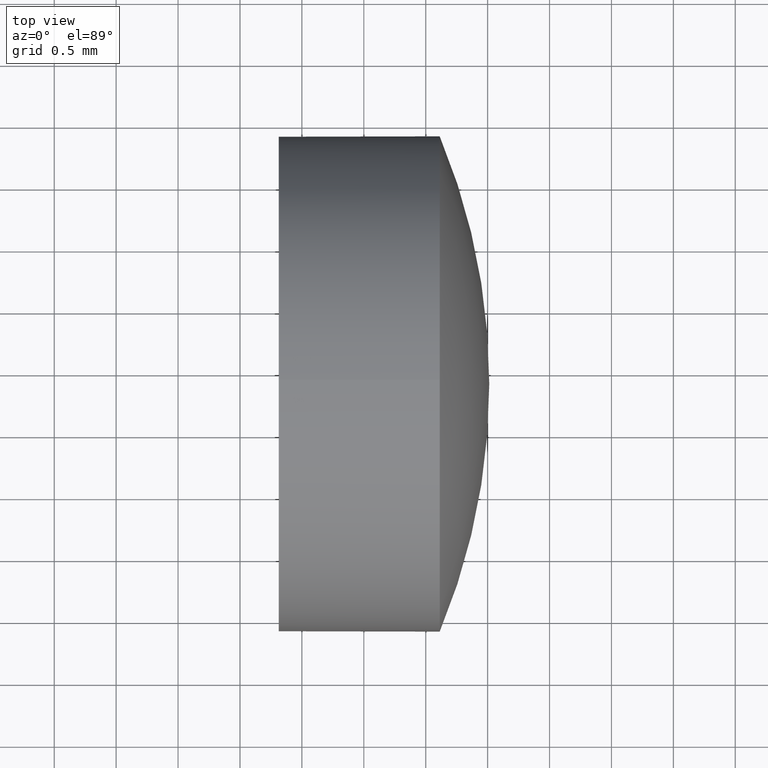
[diagram: clean part render]
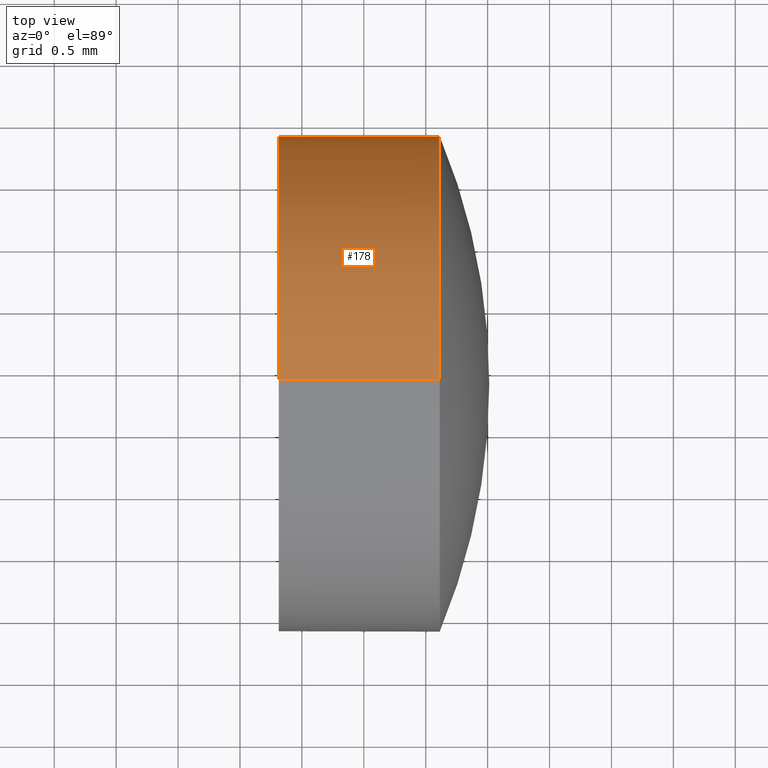
[diagram: same view with one face highlighted and labeled with its STEP entity id]
A machine part, top view. The second image highlights one B-rep face of the part: STEP entity #178.
In plain terms, the highlighted cylindrical surface (partial cylindrical patch) has radius 2 mm, axis along (-1, -0, -0).
Its self-contained STEP definition (entity closure, byte-faithful):
#9 = ORIENTED_EDGE ( 'NONE', *, *, #77, .F. ) ;
#10 = AXIS2_PLACEMENT_3D ( 'NONE', #47, #21, #88 ) ;
#12 = VECTOR ( 'NONE', #16, 1000.000000000000000 ) ;
#16 = DIRECTION ( 'NONE',  ( -1.000000000000000000, -0.0000000000000000000, -0.0000000000000000000 ) ) ;
#19 = CARTESIAN_POINT ( 'NONE',  ( 638.8131078483555700, -28.10203624254955600, 0.0000000000000000000 ) ) ;
#21 = DIRECTION ( 'NONE',  ( -1.000000000000000000, -0.0000000000000000000, -0.0000000000000000000 ) ) ;
#22 = CARTESIAN_POINT ( 'NONE',  ( 638.3832237115749400, -28.10203624254955600, -2.000000000000001800 ) ) ;
#33 = CARTESIAN_POINT ( 'NONE',  ( 640.1131078483556400, -28.10203624254955600, 0.0000000000000000000 ) ) ;
#37 = CARTESIAN_POINT ( 'NONE',  ( 640.1131078483556400, -28.10203624254955600, 2.000000000000001800 ) ) ;
#42 = DIRECTION ( 'NONE',  ( -1.000000000000000000, -0.0000000000000000000, -0.0000000000000000000 ) ) ;
#45 = DIRECTION ( 'NONE',  ( 0.0000000000000000000, 0.0000000000000000000, 1.000000000000000000 ) ) ;
#47 = CARTESIAN_POINT ( 'NONE',  ( 640.1131078483556400, -28.10203624254955600, 0.0000000000000000000 ) ) ;
#51 = LINE ( 'NONE', #176, #81 ) ;
#58 = LINE ( 'NONE', #22, #12 ) ;
#60 = EDGE_CURVE ( 'NONE', #183, #158, #139, .T. ) ;
#63 = VERTEX_POINT ( 'NONE', #68 ) ;
#68 = CARTESIAN_POINT ( 'NONE',  ( 638.8131078483555700, -28.10203624254955600, 2.000000000000001800 ) ) ;
#69 = EDGE_LOOP ( 'NONE', ( #123, #79, #9, #127, #96 ) ) ;
#77 = EDGE_CURVE ( 'NONE', #63, #140, #134, .T. ) ;
#79 = ORIENTED_EDGE ( 'NONE', *, *, #167, .T. ) ;
#81 = VECTOR ( 'NONE', #159, 1000.000000000000000 ) ;
#88 = DIRECTION ( 'NONE',  ( 0.0000000000000000000, 0.0000000000000000000, 1.000000000000000000 ) ) ;
#95 = CYLINDRICAL_SURFACE ( 'NONE', #110, 2.000000000000001800 ) ;
#96 = ORIENTED_EDGE ( 'NONE', *, *, #128, .T. ) ;
#100 = DIRECTION ( 'NONE',  ( 0.0000000000000000000, 0.0000000000000000000, 1.000000000000000000 ) ) ;
#103 = DIRECTION ( 'NONE',  ( 0.0000000000000000000, 0.0000000000000000000, 1.000000000000000000 ) ) ;
#104 = CARTESIAN_POINT ( 'NONE',  ( 638.8131078483555700, -28.10203624254955600, -2.000000000000001800 ) ) ;
#110 = AXIS2_PLACEMENT_3D ( 'NONE', #114, #42, #100 ) ;
#114 = CARTESIAN_POINT ( 'NONE',  ( 638.3832237115749400, -28.10203624254955600, 0.0000000000000000000 ) ) ;
#118 = CARTESIAN_POINT ( 'NONE',  ( 640.1131078483556400, -26.10203624254958800, 0.0000000000000000000 ) ) ;
#121 = DIRECTION ( 'NONE',  ( -1.000000000000000000, -0.0000000000000000000, -0.0000000000000000000 ) ) ;
#123 = ORIENTED_EDGE ( 'NONE', *, *, #60, .T. ) ;
#125 = FACE_OUTER_BOUND ( 'NONE', #69, .T. ) ;
#126 = CIRCLE ( 'NONE', #10, 2.000000000000001800 ) ;
#127 = ORIENTED_EDGE ( 'NONE', *, *, #172, .F. ) ;
#128 = EDGE_CURVE ( 'NONE', #168, #183, #126, .T. ) ;
#133 = DIRECTION ( 'NONE',  ( -1.000000000000000000, -0.0000000000000000000, -0.0000000000000000000 ) ) ;
#134 = CIRCLE ( 'NONE', #147, 2.000000000000001800 ) ;
#139 = CIRCLE ( 'NONE', #153, 2.000000000000001800 ) ;
#140 = VERTEX_POINT ( 'NONE', #104 ) ;
#147 = AXIS2_PLACEMENT_3D ( 'NONE', #19, #121, #103 ) ;
#153 = AXIS2_PLACEMENT_3D ( 'NONE', #33, #133, #45 ) ;
#158 = VERTEX_POINT ( 'NONE', #182 ) ;
#159 = DIRECTION ( 'NONE',  ( -1.000000000000000000, -0.0000000000000000000, -0.0000000000000000000 ) ) ;
#167 = EDGE_CURVE ( 'NONE', #158, #140, #58, .T. ) ;
#168 = VERTEX_POINT ( 'NONE', #37 ) ;
#172 = EDGE_CURVE ( 'NONE', #168, #63, #51, .T. ) ;
#176 = CARTESIAN_POINT ( 'NONE',  ( 638.3832237115749400, -28.10203624254955600, 2.000000000000001800 ) ) ;
#178 = ADVANCED_FACE ( 'NONE', ( #125 ), #95, .T. ) ;
#182 = CARTESIAN_POINT ( 'NONE',  ( 640.1131078483556400, -28.10203624254955600, -2.000000000000001800 ) ) ;
#183 = VERTEX_POINT ( 'NONE', #118 ) ;